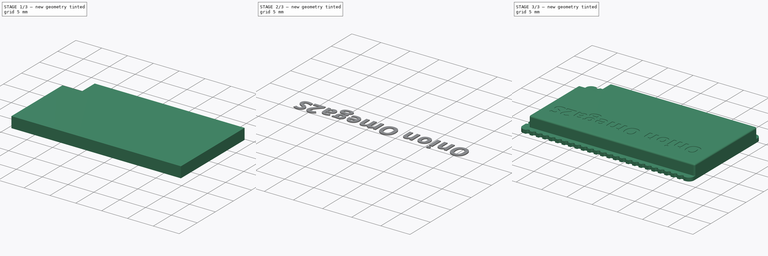
[diagram: build sequence overview — one tinted view per stage of 3, left to right]
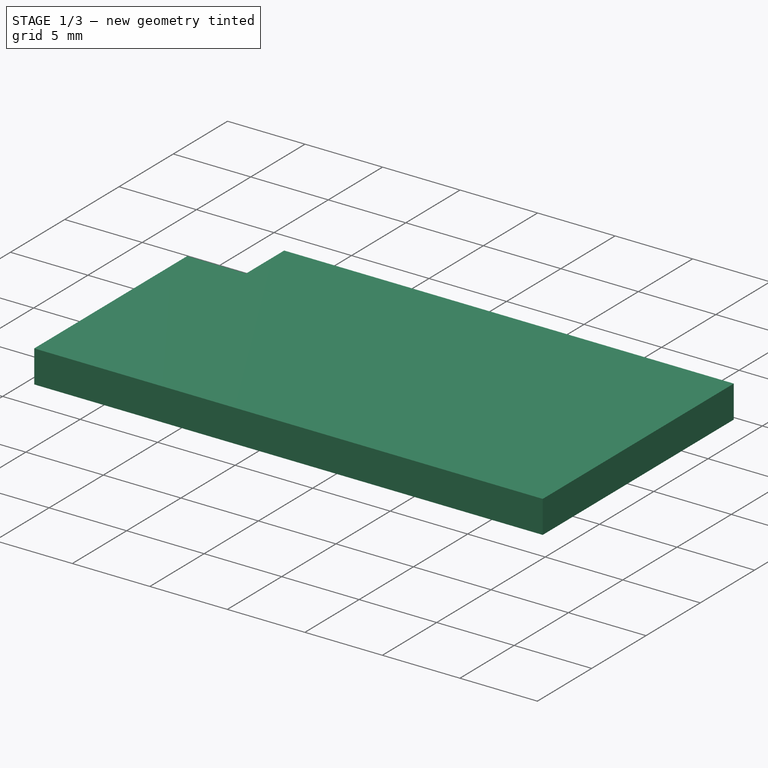
[diagram: stage 1 of 3 — iso view after this stage's code; geometry added in this stage tinted green]
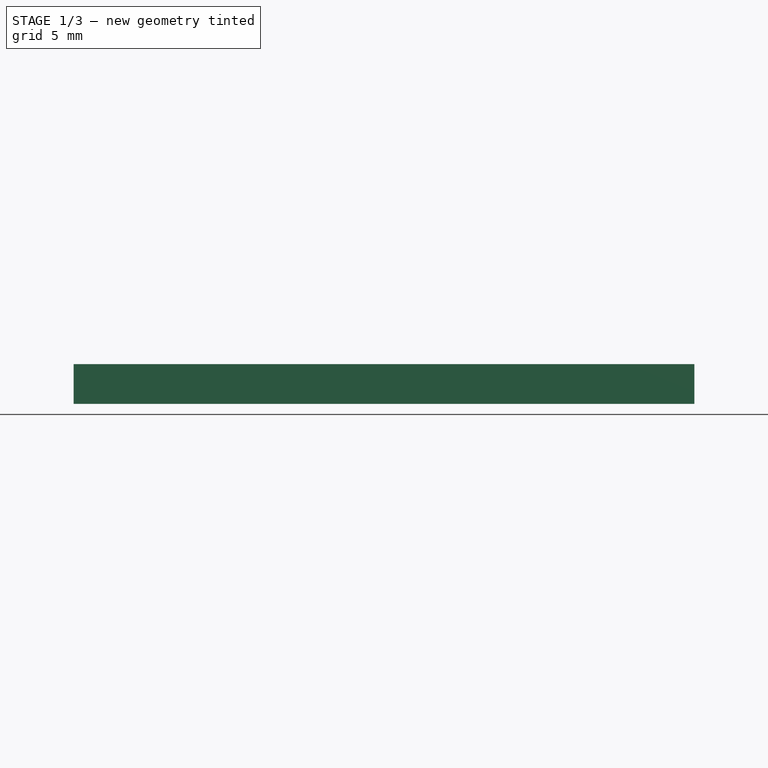
[diagram: stage 1 of 3 — front view after this stage's code; geometry added in this stage tinted green]
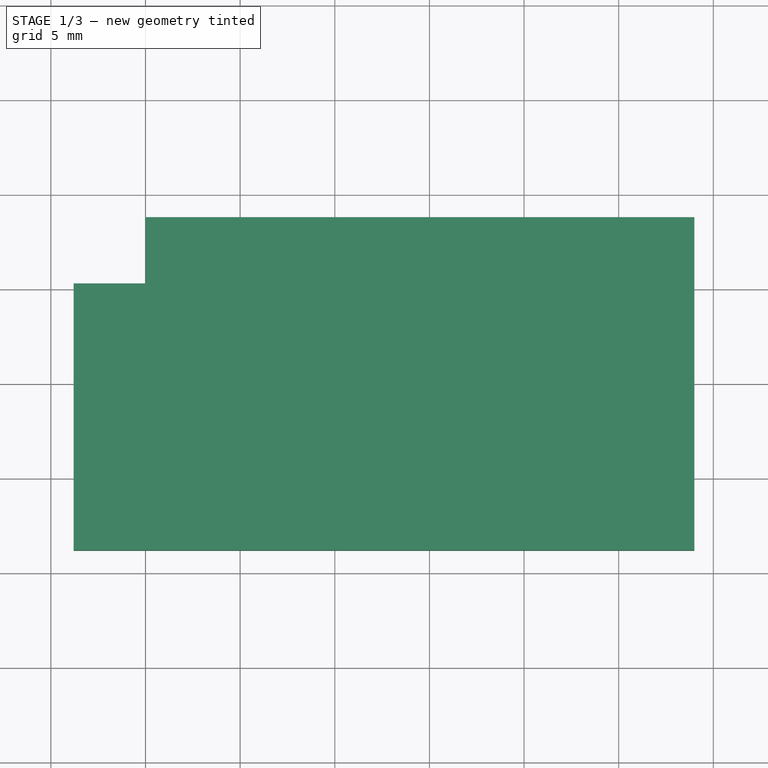
[diagram: stage 1 of 3 — top view after this stage's code; geometry added in this stage tinted green]
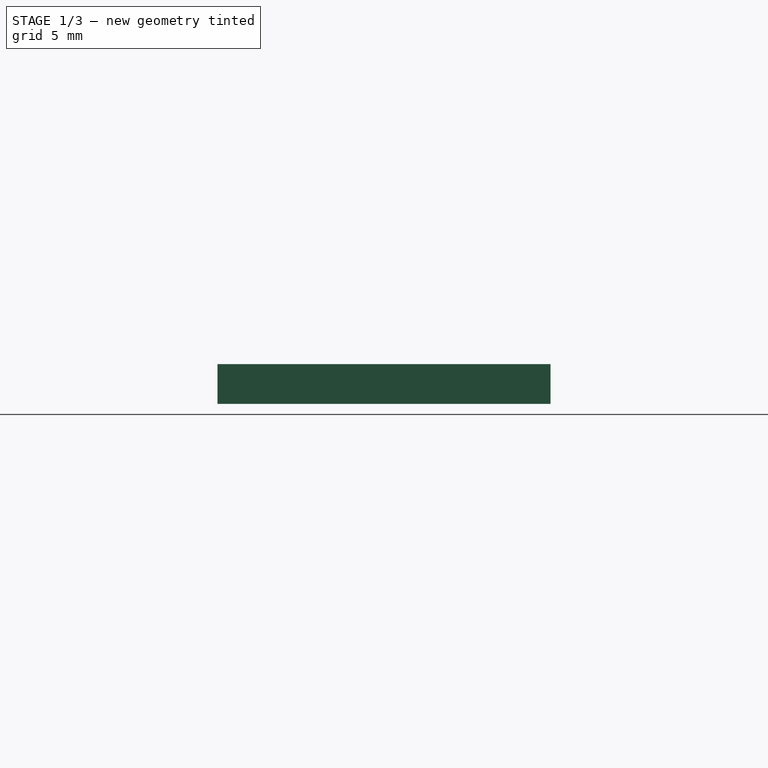
[diagram: stage 1 of 3 — right view after this stage's code; geometry added in this stage tinted green]
FCSTD DOCUMENT  (FreeCAD 0.19R24366 (Git))
Label: omega2s
License: CreativeCommons Attribution
LicenseURL: http://creativecommons.org/licenses/by/4.0/
objects: Sketcher::SketchObject×2, PartDesign::Pad×2, PartDesign::Body×2, App::Part×2, PartDesign::Fillet×2, PartDesign::Thickness×1, Part::Feature×1, Part::Part2DObjectPython×1, Part::Extrusion×1, Part::Cut×1
note: 18 computed .brp shape members not serialized (recipe doc carries the construction recipe); baked Part::Feature solids carry a one-line shape summary decoded from their .brp

FEATURE [PartDesign::Body] Body
  Group = -> [Sketch,Pad]
  Origin = -> Origin001
  Tip = -> Pad
FEATURE [App::Part] Part
  Group = -> [Body]
  Origin = -> Origin
FEATURE [Sketcher::SketchObject] Sketch001
  FullyConstrained = false
  MapMode = 5
  Support = -> [XY_Plane003]
  sketch-geometry (6):
    g0: LineSegment StartX=5 StartY=18.8 StartZ=0 EndX=34 EndY=18.8 EndZ=0
    g1: LineSegment StartX=34 StartY=18.8 StartZ=0 EndX=34 EndY=1.2 EndZ=0
    g2: LineSegment StartX=34 StartY=1.2 StartZ=0 EndX=1.2 EndY=1.2 EndZ=0
    g3: LineSegment StartX=1.2 StartY=1.2 StartZ=0 EndX=1.2 EndY=15.3 EndZ=0
    g4: LineSegment StartX=1.2 StartY=15.3 StartZ=0 EndX=5 EndY=15.3 EndZ=0
    g5: LineSegment StartX=5 StartY=15.3 StartZ=0 EndX=5 EndY=18.8 EndZ=0
  constraints (18):
    c: Horizontal(g0)
    c: Coincident(g0,g1)
    c: Vertical(g1)
    c: Coincident(g1,g2)
    c: Horizontal(g2)
    c: Coincident(g2,g3)
    c: Vertical(g3)
    c: Coincident(g3,g4)
    c: Horizontal(g4)
    c: Coincident(g4,g5)
    c: Coincident(g5,g0)
    c: Vertical(g5)
    c: DistanceX(g-1,g2) = 1.2
    c: DistanceY(g-1,g2) = 1.2
    c: DistanceX(g2,g2) = 32.8
    c: DistanceY(g1,g1) = 17.6
    c: DistanceX(g0,g0) = 29
    c: DistanceY(g5,g5) = 3.5
FEATURE [PartDesign::Pad] Pad001
  AllowMultiFace = false
  Direction = (1,1,1)
  Length = 2.1
  Length2 = 100
  Profile = -> Sketch001
  Type = 0
FEATURE [PartDesign::Thickness] Thickness
  Base = -> Pad001 [Face7]
  BaseFeature = -> Pad001
  Intersection = false
  Join = 1
  Mode = 0
  Reversed = true
  SupportTransform = false
  Value = 0.5
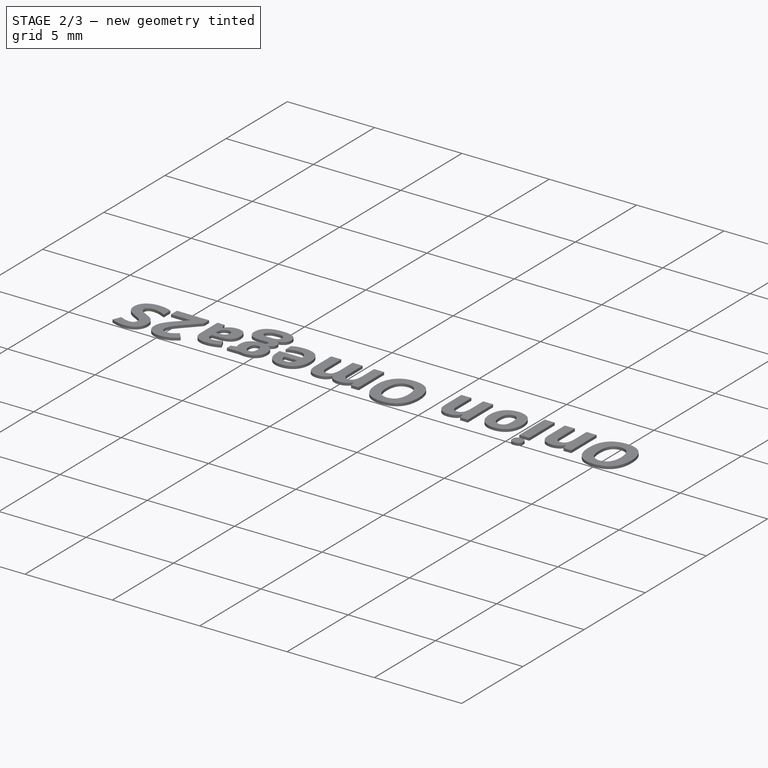
[diagram: stage 2 of 3 — iso view after this stage's code; geometry added in this stage tinted green]
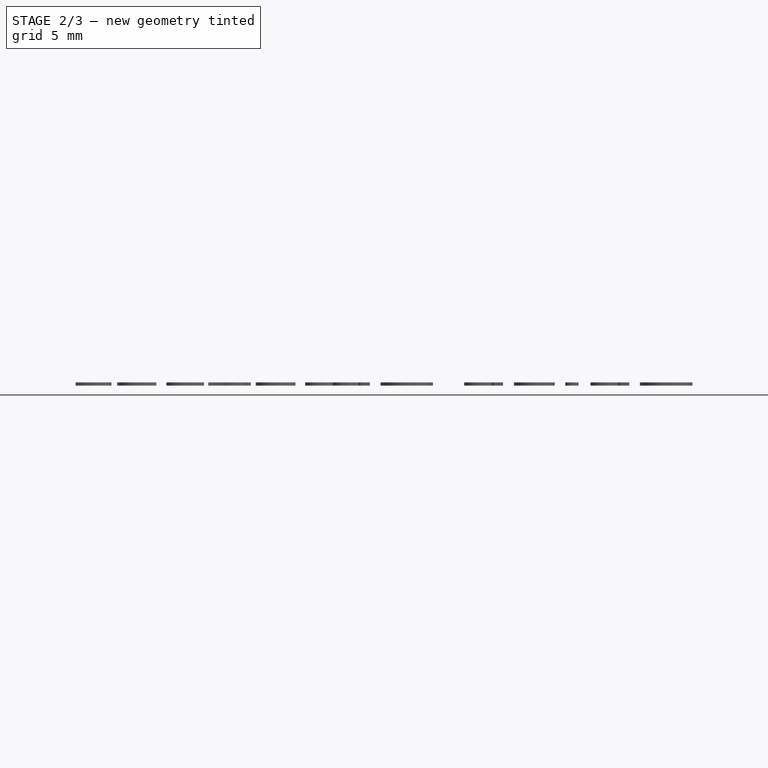
[diagram: stage 2 of 3 — front view after this stage's code; geometry added in this stage tinted green]
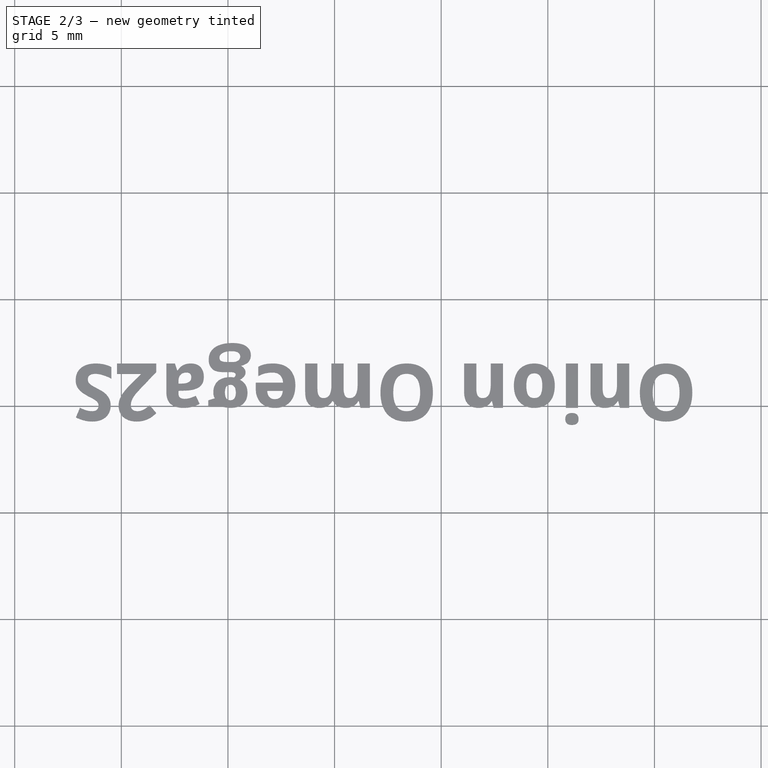
[diagram: stage 2 of 3 — top view after this stage's code; geometry added in this stage tinted green]
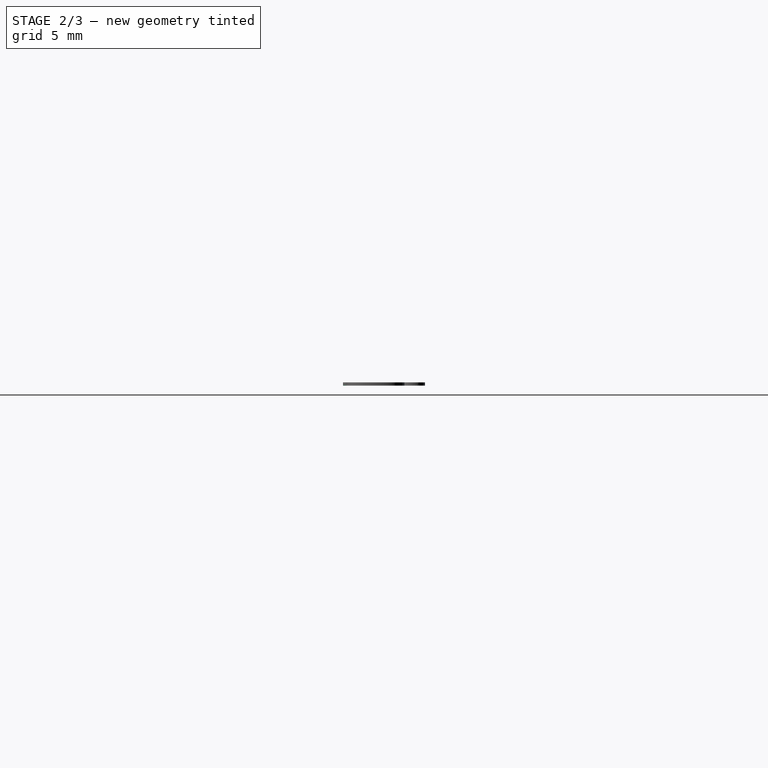
[diagram: stage 2 of 3 — right view after this stage's code; geometry added in this stage tinted green]
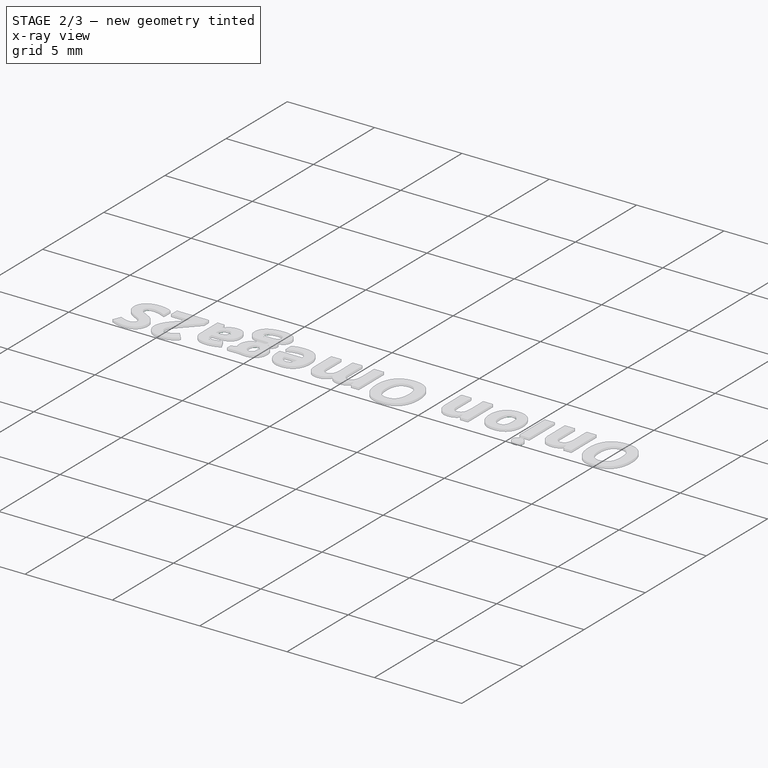
[diagram: stage 2 of 3 — x-ray composite at the iso view; earlier geometry ghosted, this stage's added geometry solid]
FEATURE [Part::Feature] Part__Feature  label="conn_rf_uFL_3450020P1"
  Placement = pos=(2.9,17.1,0.7) rot=(0,0,1;0rad)
  shape: bbox 3 x 3.1 x 1.25 mm, 79 faces (baked)
FEATURE [PartDesign::Fillet] Fillet
  Base = -> Thickness [Edge8,Edge5,Edge2,Edge1,Edge14,Edge11,Edge13,Edge10,Edge7,Edge4,Edge18,Edge16]
  BaseFeature = -> Thickness
  Radius = 0.3
  SupportTransform = false
FEATURE [PartDesign::Fillet] Fillet001
  Base = -> Fillet [Edge53,Edge55,Edge48,Edge46,Edge50,Edge51,Edge54,Edge52,Edge49,Edge47,Edge56,Edge57]
  BaseFeature = -> Fillet
  Radius = 0.1
  SupportTransform = false
FEATURE [PartDesign::Body] Body001
  Group = -> [Sketch001,Pad001,Thickness,Fillet,Fillet001]
  Origin = -> Origin003
  Tip = -> Fillet001
FEATURE [App::Part] Part001
  Group = -> [Body001]
  Origin = -> Origin002
  Placement = pos=(0,0,0.7) rot=(0,0,1;0rad)
FEATURE [Part::Part2DObjectPython] ShapeString  # Draft 2D object (typed FeaturePython)
  FontFile = <userpath>/Downloads/fonts/Droid_Sans/DroidSans-Bold.ttf
  Placement = pos=(32,7,2) rot=(0,0,1;3.14159rad)
  Size = 3
  String = Onion Omega2S
  Support = -> [Fillet001]
  Tracking = 0
FEATURE [Part::Extrusion] Extrude001
  Base = -> ShapeString
  Dir = (0,0,1)
  DirMode = 2
  FaceMakerClass = Part::FaceMakerBullseye
  LengthFwd = 0.15
  LengthRev = 0
  Solid = true
  Symmetric = false
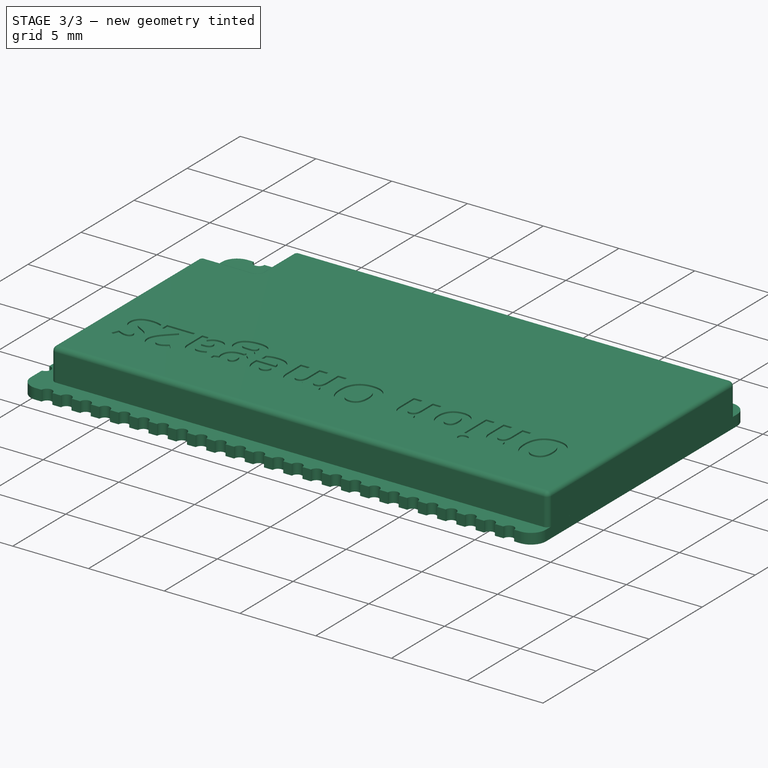
[diagram: stage 3 of 3 — iso view after this stage's code; geometry added in this stage tinted green]
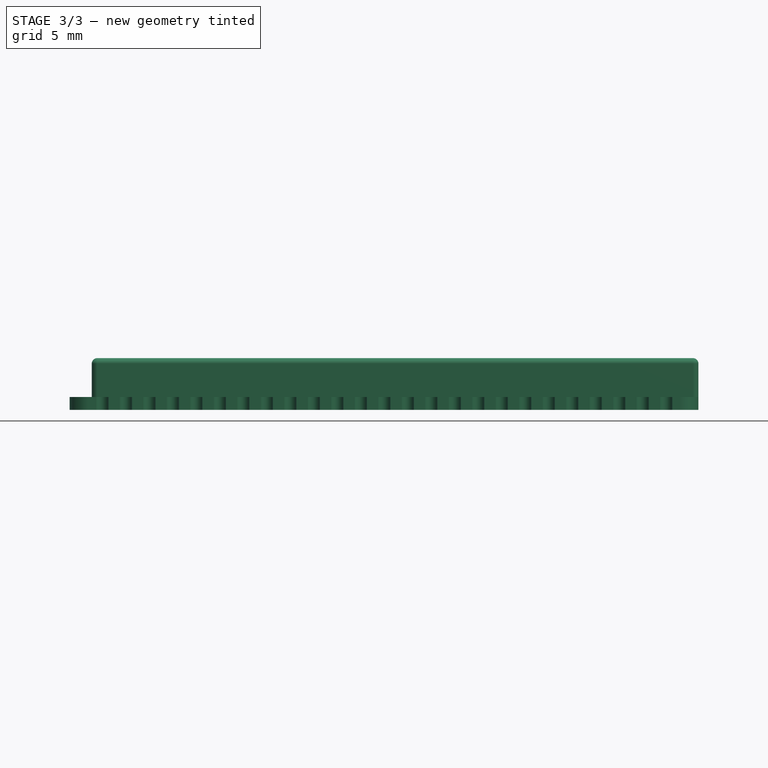
[diagram: stage 3 of 3 — front view after this stage's code; geometry added in this stage tinted green]
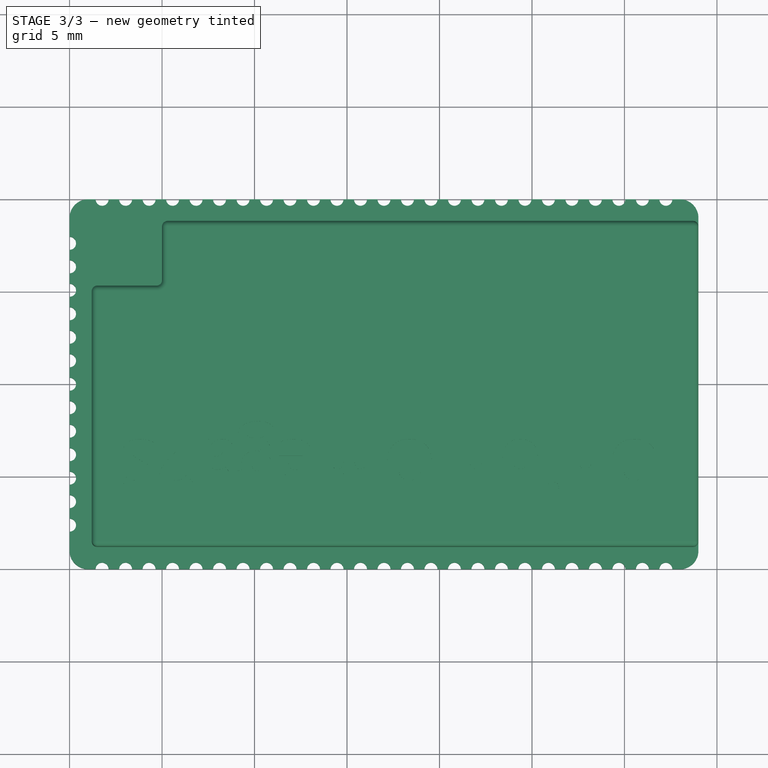
[diagram: stage 3 of 3 — top view after this stage's code; geometry added in this stage tinted green]
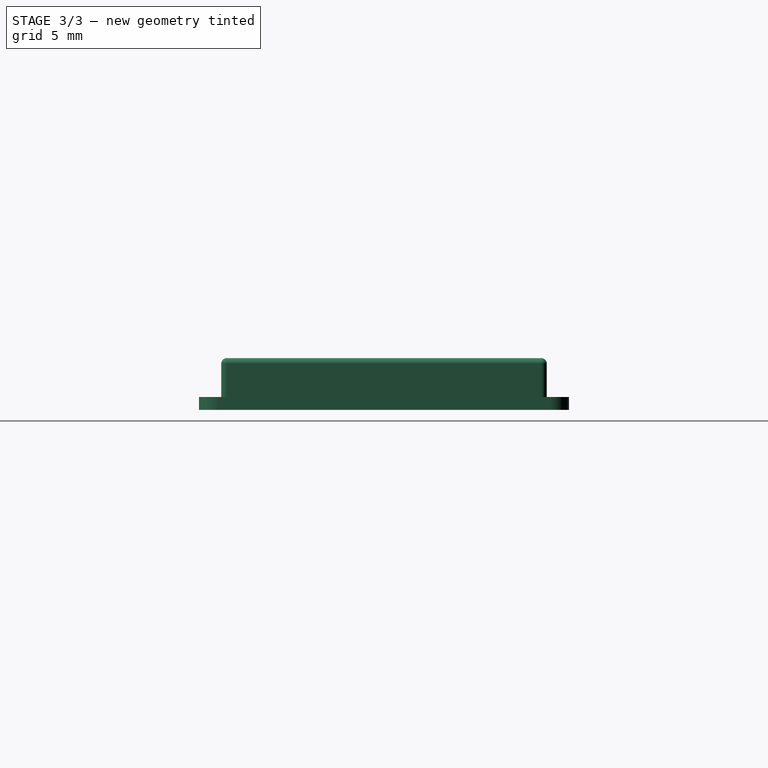
[diagram: stage 3 of 3 — right view after this stage's code; geometry added in this stage tinted green]
FEATURE [Sketcher::SketchObject] Sketch
  FullyConstrained = false
  MapMode = 5
  Support = -> [XY_Plane001]
  sketch-geometry (245):
    g0: LineSegment StartX=0 StartY=0 StartZ=0 EndX=1.76 EndY=0 EndZ=0
    g1: ArcOfCircle CenterX=1.76 CenterY=0 CenterZ=0 NormalX=0 NormalY=0 NormalZ=1 AngleXU=0 Radius=0.35 StartAngle=0 EndAngle=3.14159
    g2: LineSegment StartX=1.41 StartY=0 StartZ=0 EndX=1 EndY=0 EndZ=0
    g3: ArcOfCircle CenterX=3.03 CenterY=0 CenterZ=0 NormalX=0 NormalY=0 NormalZ=1 AngleXU=0 Radius=0.35 StartAngle=1e-16 EndAngle=3.14159
    g4: LineSegment StartX=2.11 StartY=0 StartZ=0 EndX=3.38 EndY=0 EndZ=0
    g5: ArcOfCircle CenterX=4.3 CenterY=0 CenterZ=0 NormalX=0 NormalY=0 NormalZ=1 AngleXU=0 Radius=0.35 StartAngle=1e-16 EndAngle=3.14159
    g6: LineSegment StartX=3.38 StartY=0 StartZ=0 EndX=4.65 EndY=0 EndZ=0
    g7: ArcOfCircle CenterX=5.57 CenterY=0 CenterZ=0 NormalX=0 NormalY=0 NormalZ=1 AngleXU=0 Radius=0.35 StartAngle=1e-16 EndAngle=3.14159
    g8: LineSegment StartX=4.65 StartY=0 StartZ=0 EndX=5.92 EndY=0 EndZ=0
    g9: ArcOfCircle CenterX=6.84 CenterY=0 CenterZ=0 NormalX=0 NormalY=0 NormalZ=1 AngleXU=0 Radius=0.35 StartAngle=1e-16 EndAngle=3.14159
    g10: LineSegment StartX=5.92 StartY=0 StartZ=0 EndX=7.19 EndY=0 EndZ=0
    g11: ArcOfCircle CenterX=8.11 CenterY=0 CenterZ=0 NormalX=0 NormalY=0 NormalZ=1 AngleXU=0 Radius=0.35 StartAngle=1e-16 EndAngle=3.14159
    g12: LineSegment StartX=7.19 StartY=0 StartZ=0 EndX=8.46 EndY=0 EndZ=0
    g13: ArcOfCircle CenterX=9.38 CenterY=0 CenterZ=0 NormalX=0 NormalY=0 NormalZ=1 AngleXU=0 Radius=0.35 StartAngle=1e-16 EndAngle=3.14159
    g14: LineSegment StartX=8.46 StartY=0 StartZ=0 EndX=9.73 EndY=0 EndZ=0
    g15: ArcOfCircle CenterX=10.65 CenterY=0 CenterZ=0 NormalX=0 NormalY=0 NormalZ=1 AngleXU=0 Radius=0.35 StartAngle=1e-16 EndAngle=3.14159
    g16: LineSegment StartX=9.73 StartY=0 StartZ=0 EndX=11 EndY=0 EndZ=0
    g17: ArcOfCircle CenterX=11.92 CenterY=0 CenterZ=0 NormalX=0 NormalY=0 NormalZ=1 AngleXU=0 Radius=0.35 StartAngle=1e-16 EndAngle=3.14159
    g18: LineSegment StartX=11 StartY=0 StartZ=0 EndX=12.27 EndY=0 EndZ=0
    g19: ArcOfCircle CenterX=13.19 CenterY=0 CenterZ=0 NormalX=0 NormalY=0 NormalZ=1 AngleXU=0 Radius=0.35 StartAngle=1e-16 EndAngle=3.14159
    g20: LineSegment StartX=12.27 StartY=0 StartZ=0 EndX=13.54 EndY=0 EndZ=0
    g21: ArcOfCircle CenterX=14.46 CenterY=0 CenterZ=0 NormalX=0 NormalY=0 NormalZ=1 AngleXU=0 Radius=0.35 StartAngle=1e-16 EndAngle=3.14159
    g22: LineSegment StartX=13.54 StartY=0 StartZ=0 EndX=14.81 EndY=0 EndZ=0
    g23: ArcOfCircle CenterX=15.73 CenterY=0 CenterZ=0 NormalX=0 NormalY=0 NormalZ=1 AngleXU=0 Radius=0.35 StartAngle=1e-16 EndAngle=3.14159
    g24: LineSegment StartX=14.81 StartY=0 StartZ=0 EndX=16.08 EndY=0 EndZ=0
    g25: ArcOfCircle CenterX=17 CenterY=0 CenterZ=0 NormalX=0 NormalY=0 NormalZ=1 AngleXU=0 Radius=0.35 StartAngle=1e-16 EndAngle=3.14159
    g26: LineSegment StartX=16.08 StartY=0 StartZ=0 EndX=17.35 EndY=0 EndZ=0
    g27: ArcOfCircle CenterX=18.27 CenterY=0 CenterZ=0 NormalX=0 NormalY=0 NormalZ=1 AngleXU=0 Radius=0.35 StartAngle=1e-16 EndAngle=3.14159
    g28: LineSegment StartX=17.35 StartY=0 StartZ=0 EndX=18.62 EndY=0 EndZ=0
    g29: ArcOfCircle CenterX=19.54 CenterY=0 CenterZ=0 NormalX=0 NormalY=0 NormalZ=1 AngleXU=0 Radius=0.35 StartAngle=1e-16 EndAngle=3.14159
    g30: LineSegment StartX=18.62 StartY=0 StartZ=0 EndX=19.89 EndY=0 EndZ=0
    g31: ArcOfCircle CenterX=20.81 CenterY=0 CenterZ=0 NormalX=0 NormalY=0 NormalZ=1 AngleXU=0 Radius=0.35 StartAngle=1e-16 EndAngle=3.14159
    g32: LineSegment StartX=19.89 StartY=0 StartZ=0 EndX=21.16 EndY=0 EndZ=0
    g33: ArcOfCircle CenterX=22.08 CenterY=0 CenterZ=0 NormalX=0 NormalY=0 NormalZ=1 AngleXU=0 Radius=0.35 StartAngle=1e-16 EndAngle=3.14159
    g34: LineSegment StartX=21.16 StartY=0 StartZ=0 EndX=22.43 EndY=0 EndZ=0
    g35: ArcOfCircle CenterX=23.35 CenterY=0 CenterZ=0 NormalX=0 NormalY=0 NormalZ=1 AngleXU=0 Radius=0.35 StartAngle=1e-16 EndAngle=3.14159
    g36: LineSegment StartX=22.43 StartY=0 StartZ=0 EndX=23.7 EndY=0 EndZ=0
    g37: ArcOfCircle CenterX=24.62 CenterY=0 CenterZ=0 NormalX=0 NormalY=0 NormalZ=1 AngleXU=0 Radius=0.35 StartAngle=1e-16 EndAngle=3.14159
    g38: LineSegment StartX=23.7 StartY=0 StartZ=0 EndX=24.97 EndY=0 EndZ=0
    g39: ArcOfCircle CenterX=25.89 CenterY=0 CenterZ=0 NormalX=0 NormalY=0 NormalZ=1 AngleXU=0 Radius=0.35 StartAngle=1e-16 EndAngle=3.14159
    g40: LineSegment StartX=24.97 StartY=0 StartZ=0 EndX=26.24 EndY=0 EndZ=0
    g41: ArcOfCircle CenterX=27.16 CenterY=0 CenterZ=0 NormalX=0 NormalY=0 NormalZ=1 AngleXU=0 Radius=0.35 StartAngle=1e-16 EndAngle=3.14159
    g42: LineSegment StartX=26.24 StartY=0 StartZ=0 EndX=27.51 EndY=0 EndZ=0
    g43: ArcOfCircle CenterX=28.43 CenterY=0 CenterZ=0 NormalX=0 NormalY=0 NormalZ=1 AngleXU=0 Radius=0.35 StartAngle=1e-16 EndAngle=3.14159
    g44: LineSegment StartX=27.51 StartY=0 StartZ=0 EndX=28.78 EndY=0 EndZ=0
    g45: ArcOfCircle CenterX=29.7 CenterY=0 CenterZ=0 NormalX=0 NormalY=0 NormalZ=1 AngleXU=0 Radius=0.35 StartAngle=1e-16 EndAngle=3.14159
    g46: LineSegment StartX=28.78 StartY=0 StartZ=0 EndX=30.05 EndY=0 EndZ=0
    g47: ArcOfCircle CenterX=30.97 CenterY=0 CenterZ=0 NormalX=0 NormalY=0 NormalZ=1 AngleXU=0 Radius=0.35 StartAngle=1e-16 EndAngle=3.14159
    g48: LineSegment StartX=30.05 StartY=0 StartZ=0 EndX=31.32 EndY=0 EndZ=0
    g49: ArcOfCircle CenterX=32.24 CenterY=0 CenterZ=0 NormalX=0 NormalY=0 NormalZ=1 AngleXU=0 Radius=0.35 StartAngle=1e-16 EndAngle=3.14159
    g50: LineSegment StartX=31.32 StartY=0 StartZ=0 EndX=32.59 EndY=0 EndZ=0
    g51: LineSegment StartX=2.11 StartY=0 StartZ=0 EndX=2.68 EndY=0 EndZ=0
    g52: LineSegment StartX=3.38 StartY=0 StartZ=0 EndX=3.95 EndY=0 EndZ=0
    g53: LineSegment StartX=2.11 StartY=0 StartZ=0 EndX=3.38 EndY=0 EndZ=0
    g54: LineSegment StartX=4.65 StartY=0 StartZ=0 EndX=5.22 EndY=0 EndZ=0
    g55: LineSegment StartX=3.38 StartY=0 StartZ=0 EndX=4.65 EndY=0 EndZ=0
    g56: LineSegment StartX=5.92 StartY=0 StartZ=0 EndX=6.49 EndY=0 EndZ=0
    g57: LineSegment StartX=4.65 StartY=0 StartZ=0 EndX=5.92 EndY=0 EndZ=0
    g58: LineSegment StartX=7.19 StartY=0 StartZ=0 EndX=7.76 EndY=0 EndZ=0
    g59: LineSegment StartX=5.92 StartY=0 StartZ=0 EndX=7.19 EndY=0 EndZ=0
    g60: LineSegment StartX=8.46 StartY=0 StartZ=0 EndX=9.03 EndY=0 EndZ=0
    g61: LineSegment StartX=7.19 StartY=0 StartZ=0 EndX=8.46 EndY=0 EndZ=0
    g62: LineSegment StartX=9.73 StartY=0 StartZ=0 EndX=10.3 EndY=0 EndZ=0
    g63: LineSegment StartX=8.46 StartY=0 StartZ=0 EndX=9.73 EndY=0 EndZ=0
    g64: LineSegment StartX=11 StartY=0 StartZ=0 EndX=11.57 EndY=0 EndZ=0
    g65: LineSegment StartX=9.73 StartY=0 StartZ=0 EndX=11 EndY=0 EndZ=0
    g66: LineSegment StartX=12.27 StartY=0 StartZ=0 EndX=12.84 EndY=0 EndZ=0
    g67: LineSegment StartX=11 StartY=0 StartZ=0 EndX=12.27 EndY=0 EndZ=0
    g68: LineSegment StartX=13.54 StartY=0 StartZ=0 EndX=14.11 EndY=0 EndZ=0
    g69: LineSegment StartX=12.27 StartY=0 StartZ=0 EndX=13.54 EndY=0 EndZ=0
    g70: LineSegment StartX=14.81 StartY=0 StartZ=0 EndX=15.38 EndY=0 EndZ=0
    g71: LineSegment StartX=13.54 StartY=0 StartZ=0 EndX=14.81 EndY=0 EndZ=0
    g72: LineSegment StartX=16.08 StartY=0 StartZ=0 EndX=16.65 EndY=0 EndZ=0
    g73: LineSegment StartX=14.81 StartY=0 StartZ=0 EndX=16.08 EndY=0 EndZ=0
    g74: LineSegment StartX=17.35 StartY=0 StartZ=0 EndX=17.92 EndY=0 EndZ=0
    g75: LineSegment StartX=16.08 StartY=0 StartZ=0 EndX=17.35 EndY=0 EndZ=0
    g76: LineSegment StartX=18.62 StartY=0 StartZ=0 EndX=19.19 EndY=0 EndZ=0
    g77: LineSegment StartX=17.35 StartY=0 StartZ=0 EndX=18.62 EndY=0 EndZ=0
    g78: LineSegment StartX=19.89 StartY=0 StartZ=0 EndX=20.46 EndY=0 EndZ=0
    g79: LineSegment StartX=18.62 StartY=0 StartZ=0 EndX=19.89 EndY=0 EndZ=0
    g80: LineSegment StartX=21.16 StartY=0 StartZ=0 EndX=21.73 EndY=0 EndZ=0
    g81: LineSegment StartX=19.89 StartY=0 StartZ=0 EndX=21.16 EndY=0 EndZ=0
    g82: LineSegment StartX=22.43 StartY=0 StartZ=0 EndX=23 EndY=0 EndZ=0
    g83: LineSegment StartX=21.16 StartY=0 StartZ=0 EndX=22.43 EndY=0 EndZ=0
    g84: LineSegment StartX=23.7 StartY=0 StartZ=0 EndX=24.27 EndY=0 EndZ=0
    g85: LineSegment StartX=22.43 StartY=0 StartZ=0 EndX=23.7 EndY=0 EndZ=0
    g86: LineSegment StartX=24.97 StartY=0 StartZ=0 EndX=25.54 EndY=0 EndZ=0
    g87: LineSegment StartX=23.7 StartY=0 StartZ=0 EndX=24.97 EndY=0 EndZ=0
    g88: LineSegment StartX=26.24 StartY=0 StartZ=0 EndX=26.81 EndY=0 EndZ=0
    g89: LineSegment StartX=24.97 StartY=0 StartZ=0 EndX=26.24 EndY=0 EndZ=0
    g90: LineSegment StartX=27.51 StartY=0 StartZ=0 EndX=28.08 EndY=0 EndZ=0
    g91: LineSegment StartX=26.24 StartY=0 StartZ=0 EndX=27.51 EndY=0 EndZ=0
    g92: LineSegment StartX=28.78 StartY=0 StartZ=0 EndX=29.35 EndY=0 EndZ=0
    g93: LineSegment StartX=27.51 StartY=0 StartZ=0 EndX=28.78 EndY=0 EndZ=0
    g94: LineSegment StartX=30.05 StartY=0 StartZ=0 EndX=30.62 EndY=0 EndZ=0
    g95: LineSegment StartX=28.78 StartY=0 StartZ=0 EndX=30.05 EndY=0 EndZ=0
    g96: LineSegment StartX=31.32 StartY=0 StartZ=0 EndX=31.89 EndY=0 EndZ=0
    g97: LineSegment StartX=30.05 StartY=0 StartZ=0 EndX=31.32 EndY=0 EndZ=0
    g98: LineSegment StartX=32.59 StartY=0 StartZ=0 EndX=33 EndY=-4e-16 EndZ=0
    g99: LineSegment StartX=34 StartY=1 StartZ=0 EndX=34 EndY=10 EndZ=0
    g100: LineSegment StartX=34 StartY=10 StartZ=0 EndX=34 EndY=19 EndZ=0
    g101: LineSegment StartX=34 StartY=10 StartZ=0 EndX=0 EndY=10 EndZ=0
    g102: LineSegment StartX=0 StartY=20 StartZ=0 EndX=1.76 EndY=20 EndZ=0
    g103: ArcOfCircle CenterX=1.76 CenterY=20 CenterZ=0 NormalX=0 NormalY=0 NormalZ=1 AngleXU=0 Radius=0.35 StartAngle=3.14159 EndAngle=6.28319
    g104: LineSegment StartX=1.41 StartY=20 StartZ=0 EndX=1 EndY=20 EndZ=0
    g105: ArcOfCircle CenterX=3.03 CenterY=20 CenterZ=0 NormalX=0 NormalY=0 NormalZ=1 AngleXU=0 Radius=0.35 StartAngle=3.14159 EndAngle=6.28319
    g106: LineSegment StartX=2.11 StartY=20 StartZ=0 EndX=3.38 EndY=20 EndZ=0
    g107: ArcOfCircle CenterX=4.3 CenterY=20 CenterZ=0 NormalX=0 NormalY=0 NormalZ=1 AngleXU=0 Radius=0.35 StartAngle=3.14159 EndAngle=6.28319
    g108: LineSegment StartX=3.38 StartY=20 StartZ=0 EndX=4.65 EndY=20 EndZ=0
    g109: ArcOfCircle CenterX=5.57 CenterY=20 CenterZ=0 NormalX=0 NormalY=0 NormalZ=1 AngleXU=0 Radius=0.35 StartAngle=3.14159 EndAngle=6.28319
    g110: LineSegment StartX=4.65 StartY=20 StartZ=0 EndX=5.92 EndY=20 EndZ=0
    g111: ArcOfCircle CenterX=6.84 CenterY=20 CenterZ=0 NormalX=0 NormalY=0 NormalZ=1 AngleXU=0 Radius=0.35 StartAngle=3.14159 EndAngle=6.28319
    g112: LineSegment StartX=5.92 StartY=20 StartZ=0 EndX=7.19 EndY=20 EndZ=0
    g113: ArcOfCircle CenterX=8.11 CenterY=20 CenterZ=0 NormalX=0 NormalY=0 NormalZ=1 AngleXU=0 Radius=0.35 StartAngle=3.14159 EndAngle=6.28319
    g114: LineSegment StartX=7.19 StartY=20 StartZ=0 EndX=8.46 EndY=20 EndZ=0
    g115: ArcOfCircle CenterX=9.38 CenterY=20 CenterZ=0 NormalX=0 NormalY=0 NormalZ=1 AngleXU=0 Radius=0.35 StartAngle=3.14159 EndAngle=6.28319
    g116: LineSegment StartX=8.46 StartY=20 StartZ=0 EndX=9.73 EndY=20 EndZ=0
    g117: ArcOfCircle CenterX=10.65 CenterY=20 CenterZ=0 NormalX=0 NormalY=0 NormalZ=1 AngleXU=0 Radius=0.35 StartAngle=3.14159 EndAngle=6.28319
    g118: LineSegment StartX=9.73 StartY=20 StartZ=0 EndX=11 EndY=20 EndZ=0
    g119: ArcOfCircle CenterX=11.92 CenterY=20 CenterZ=0 NormalX=0 NormalY=0 NormalZ=1 AngleXU=0 Radius=0.35 StartAngle=3.14159 EndAngle=6.28319
    g120: LineSegment StartX=11 StartY=20 StartZ=0 EndX=12.27 EndY=20 EndZ=0
    g121: ArcOfCircle CenterX=13.19 CenterY=20 CenterZ=0 NormalX=0 NormalY=0 NormalZ=1 AngleXU=0 Radius=0.35 StartAngle=3.14159 EndAngle=6.28319
    g122: LineSegment StartX=12.27 StartY=20 StartZ=0 EndX=13.54 EndY=20 EndZ=0
    g123: ArcOfCircle CenterX=14.46 CenterY=20 CenterZ=0 NormalX=0 NormalY=0 NormalZ=1 AngleXU=0 Radius=0.35 StartAngle=3.14159 EndAngle=6.28319
    g124: LineSegment StartX=13.54 StartY=20 StartZ=0 EndX=14.81 EndY=20 EndZ=0
    g125: ArcOfCircle CenterX=15.73 CenterY=20 CenterZ=0 NormalX=0 NormalY=0 NormalZ=1 AngleXU=0 Radius=0.35 StartAngle=3.14159 EndAngle=6.28319
    g126: LineSegment StartX=14.81 StartY=20 StartZ=0 EndX=16.08 EndY=20 EndZ=0
    g127: ArcOfCircle CenterX=17 CenterY=20 CenterZ=0 NormalX=0 NormalY=0 NormalZ=1 AngleXU=0 Radius=0.35 StartAngle=3.14159 EndAngle=6.28319
    g128: LineSegment StartX=16.08 StartY=20 StartZ=0 EndX=17.35 EndY=20 EndZ=0
    g129: ArcOfCircle CenterX=18.27 CenterY=20 CenterZ=0 NormalX=0 NormalY=0 NormalZ=1 AngleXU=0 Radius=0.35 StartAngle=3.14159 EndAngle=6.28319
    g130: LineSegment StartX=17.35 StartY=20 StartZ=0 EndX=18.62 EndY=20 EndZ=0
    g131: ArcOfCircle CenterX=19.54 CenterY=20 CenterZ=0 NormalX=0 NormalY=0 NormalZ=1 AngleXU=0 Radius=0.35 StartAngle=3.14159 EndAngle=6.28319
    g132: LineSegment StartX=18.62 StartY=20 StartZ=0 EndX=19.89 EndY=20 EndZ=0
    g133: ArcOfCircle CenterX=20.81 CenterY=20 CenterZ=0 NormalX=0 NormalY=0 NormalZ=1 AngleXU=0 Radius=0.35 StartAngle=3.14159 EndAngle=6.28319
    g134: LineSegment StartX=19.89 StartY=20 StartZ=0 EndX=21.16 EndY=20 EndZ=0
    g135: ArcOfCircle CenterX=22.08 CenterY=20 CenterZ=0 NormalX=0 NormalY=0 NormalZ=1 AngleXU=0 Radius=0.35 StartAngle=3.14159 EndAngle=6.28319
    g136: LineSegment StartX=21.16 StartY=20 StartZ=0 EndX=22.43 EndY=20 EndZ=0
    g137: ArcOfCircle CenterX=23.35 CenterY=20 CenterZ=0 NormalX=0 NormalY=0 NormalZ=1 AngleXU=0 Radius=0.35 StartAngle=3.14159 EndAngle=6.28319
    g138: LineSegment StartX=22.43 StartY=20 StartZ=0 EndX=23.7 EndY=20 EndZ=0
    g139: ArcOfCircle CenterX=24.62 CenterY=20 CenterZ=0 NormalX=0 NormalY=0 NormalZ=1 AngleXU=0 Radius=0.35 StartAngle=3.14159 EndAngle=6.28319
    g140: LineSegment StartX=23.7 StartY=20 StartZ=0 EndX=24.97 EndY=20 EndZ=0
    g141: ArcOfCircle CenterX=25.89 CenterY=20 CenterZ=0 NormalX=0 NormalY=0 NormalZ=1 AngleXU=0 Radius=0.35 StartAngle=3.14159 EndAngle=6.28319
    g142: LineSegment StartX=24.97 StartY=20 StartZ=0 EndX=26.24 EndY=20 EndZ=0
    g143: ArcOfCircle CenterX=27.16 CenterY=20 CenterZ=0 NormalX=0 NormalY=0 NormalZ=1 AngleXU=0 Radius=0.35 StartAngle=3.14159 EndAngle=6.28319
    g144: LineSegment StartX=26.24 StartY=20 StartZ=0 EndX=27.51 EndY=20 EndZ=0
    g145: ArcOfCircle CenterX=28.43 CenterY=20 CenterZ=0 NormalX=0 NormalY=0 NormalZ=1 AngleXU=0 Radius=0.35 StartAngle=3.14159 EndAngle=6.28319
    g146: LineSegment StartX=27.51 StartY=20 StartZ=0 EndX=28.78 EndY=20 EndZ=0
    g147: ArcOfCircle CenterX=29.7 CenterY=20 CenterZ=0 NormalX=0 NormalY=0 NormalZ=1 AngleXU=0 Radius=0.35 StartAngle=3.14159 EndAngle=6.28319
    g148: LineSegment StartX=28.78 StartY=20 StartZ=0 EndX=30.05 EndY=20 EndZ=0
    g149: ArcOfCircle CenterX=30.97 CenterY=20 CenterZ=0 NormalX=0 NormalY=0 NormalZ=1 AngleXU=0 Radius=0.35 StartAngle=3.14159 EndAngle=6.28319
    g150: LineSegment StartX=30.05 StartY=20 StartZ=0 EndX=31.32 EndY=20 EndZ=0
    g151: ArcOfCircle CenterX=32.24 CenterY=20 CenterZ=0 NormalX=0 NormalY=0 NormalZ=1 AngleXU=0 Radius=0.35 StartAngle=3.14159 EndAngle=6.28319
    g152: LineSegment StartX=31.32 StartY=20 StartZ=0 EndX=32.59 EndY=20 EndZ=0
    g153: LineSegment StartX=2.11 StartY=20 StartZ=0 EndX=2.68 EndY=20 EndZ=0
    g154: LineSegment StartX=3.38 StartY=20 StartZ=0 EndX=3.95 EndY=20 EndZ=0
    g155: LineSegment StartX=2.11 StartY=20 StartZ=0 EndX=3.38 EndY=20 EndZ=0
    g156: LineSegment StartX=4.65 StartY=20 StartZ=0 EndX=5.22 EndY=20 EndZ=0
    g157: LineSegment StartX=3.38 StartY=20 StartZ=0 EndX=4.65 EndY=20 EndZ=0
    g158: LineSegment StartX=5.92 StartY=20 StartZ=0 EndX=6.49 EndY=20 EndZ=0
    g159: LineSegment StartX=4.65 StartY=20 StartZ=0 EndX=5.92 EndY=20 EndZ=0
    g160: LineSegment StartX=7.19 StartY=20 StartZ=0 EndX=7.76 EndY=20 EndZ=0
    g161: LineSegment StartX=5.92 StartY=20 StartZ=0 EndX=7.19 EndY=20 EndZ=0
    g162: LineSegment StartX=8.46 StartY=20 StartZ=0 EndX=9.03 EndY=20 EndZ=0
    g163: LineSegment StartX=7.19 StartY=20 StartZ=0 EndX=8.46 EndY=20 EndZ=0
    g164: LineSegment StartX=9.73 StartY=20 StartZ=0 EndX=10.3 EndY=20 EndZ=0
    g165: LineSegment StartX=8.46 StartY=20 StartZ=0 EndX=9.73 EndY=20 EndZ=0
    g166: LineSegment StartX=11 StartY=20 StartZ=0 EndX=11.57 EndY=20 EndZ=0
    g167: LineSegment StartX=9.73 StartY=20 StartZ=0 EndX=11 EndY=20 EndZ=0
    g168: LineSegment StartX=12.27 StartY=20 StartZ=0 EndX=12.84 EndY=20 EndZ=0
    g169: LineSegment StartX=11 StartY=20 StartZ=0 EndX=12.27 EndY=20 EndZ=0
    g170: LineSegment StartX=13.54 StartY=20 StartZ=0 EndX=14.11 EndY=20 EndZ=0
    g171: LineSegment StartX=12.27 StartY=20 StartZ=0 EndX=13.54 EndY=20 EndZ=0
    g172: LineSegment StartX=14.81 StartY=20 StartZ=0 EndX=15.38 EndY=20 EndZ=0
    g173: LineSegment StartX=13.54 StartY=20 StartZ=0 EndX=14.81 EndY=20 EndZ=0
    g174: LineSegment StartX=16.08 StartY=20 StartZ=0 EndX=16.65 EndY=20 EndZ=0
    g175: LineSegment StartX=14.81 StartY=20 StartZ=0 EndX=16.08 EndY=20 EndZ=0
    g176: LineSegment StartX=17.35 StartY=20 StartZ=0 EndX=17.92 EndY=20 EndZ=0
    g177: LineSegment StartX=16.08 StartY=20 StartZ=0 EndX=17.35 EndY=20 EndZ=0
    g178: LineSegment StartX=18.62 StartY=20 StartZ=0 EndX=19.19 EndY=20 EndZ=0
    g179: LineSegment StartX=17.35 StartY=20 StartZ=0 EndX=18.62 EndY=20 EndZ=0
    g180: LineSegment StartX=19.89 StartY=20 StartZ=0 EndX=20.46 EndY=20 EndZ=0
    g181: LineSegment StartX=18.62 StartY=20 StartZ=0 EndX=19.89 EndY=20 EndZ=0
    g182: LineSegment StartX=21.16 StartY=20 StartZ=0 EndX=21.73 EndY=20 EndZ=0
    g183: LineSegment StartX=19.89 StartY=20 StartZ=0 EndX=21.16 EndY=20 EndZ=0
    g184: LineSegment StartX=22.43 StartY=20 StartZ=0 EndX=23 EndY=20 EndZ=0
    g185: LineSegment StartX=21.16 StartY=20 StartZ=0 EndX=22.43 EndY=20 EndZ=0
    g186: LineSegment StartX=23.7 StartY=20 StartZ=0 EndX=24.27 EndY=20 EndZ=0
    g187: LineSegment StartX=22.43 StartY=20 StartZ=0 EndX=23.7 EndY=20 EndZ=0
    g188: LineSegment StartX=24.97 StartY=20 StartZ=0 EndX=25.54 EndY=20 EndZ=0
    g189: LineSegment StartX=23.7 StartY=20 StartZ=0 EndX=24.97 EndY=20 EndZ=0
    g190: LineSegment StartX=26.24 StartY=20 StartZ=0 EndX=26.81 EndY=20 EndZ=0
    g191: LineSegment StartX=24.97 StartY=20 StartZ=0 EndX=26.24 EndY=20 EndZ=0
    g192: LineSegment StartX=27.51 StartY=20 StartZ=0 EndX=28.08 EndY=20 EndZ=0
    g193: LineSegment StartX=26.24 StartY=20 StartZ=0 EndX=27.51 EndY=20 EndZ=0
    g194: LineSegment StartX=28.78 StartY=20 StartZ=0 EndX=29.35 EndY=20 EndZ=0
    g195: LineSegment StartX=27.51 StartY=20 StartZ=0 EndX=28.78 EndY=20 EndZ=0
    g196: LineSegment StartX=30.05 StartY=20 StartZ=0 EndX=30.62 EndY=20 EndZ=0
    g197: LineSegment StartX=28.78 StartY=20 StartZ=0 EndX=30.05 EndY=20 EndZ=0
    g198: LineSegment StartX=31.32 StartY=20 StartZ=0 EndX=31.89 EndY=20 EndZ=0
    g199: LineSegment StartX=30.05 StartY=20 StartZ=0 EndX=31.32 EndY=20 EndZ=0
    g200: LineSegment StartX=32.59 StartY=20 StartZ=0 EndX=33 EndY=20 EndZ=0
    g201: LineSegment StartX=0 StartY=0 StartZ=0 EndX=0 EndY=2.38 EndZ=0
    g202: ArcOfCircle CenterX=0 CenterY=2.38 CenterZ=0 NormalX=0 NormalY=0 NormalZ=1 AngleXU=0 Radius=0.35 StartAngle=4.71239 EndAngle=7.85398
    g203: LineSegment StartX=0 StartY=2.03 StartZ=0 EndX=0 EndY=1 EndZ=0
    g204: ArcOfCircle CenterX=2e-16 CenterY=3.65 CenterZ=0 NormalX=0 NormalY=0 NormalZ=1 AngleXU=0 Radius=0.35 StartAngle=4.71239 EndAngle=7.85398
    g205: LineSegment StartX=0 StartY=2.03 StartZ=0 EndX=1e-16 EndY=3.3 EndZ=0
    g206: ArcOfCircle CenterX=2e-16 CenterY=4.92 CenterZ=0 NormalX=0 NormalY=0 NormalZ=1 AngleXU=0 Radius=0.35 StartAngle=4.71239 EndAngle=7.85398
    g207: LineSegment StartX=1e-16 StartY=3.3 StartZ=0 EndX=3e-16 EndY=4.57 EndZ=0
    g208: ArcOfCircle CenterX=3e-16 CenterY=6.19 CenterZ=0 NormalX=0 NormalY=0 NormalZ=1 AngleXU=0 Radius=0.35 StartAngle=4.71239 EndAngle=7.85398
    g209: LineSegment StartX=3e-16 StartY=4.57 StartZ=0 EndX=3e-16 EndY=5.84 EndZ=0
    g210: ArcOfCircle CenterX=4e-16 CenterY=7.46 CenterZ=0 NormalX=0 NormalY=0 NormalZ=1 AngleXU=0 Radius=0.35 StartAngle=4.71239 EndAngle=7.85398
    g211: LineSegment StartX=3e-16 StartY=5.84 StartZ=0 EndX=4e-16 EndY=7.11 EndZ=0
    g212: ArcOfCircle CenterX=5e-16 CenterY=8.73 CenterZ=0 NormalX=0 NormalY=0 NormalZ=1 AngleXU=0 Radius=0.35 StartAngle=4.71239 EndAngle=7.85398
    g213: LineSegment StartX=4e-16 StartY=7.11 StartZ=0 EndX=5e-16 EndY=8.38 EndZ=0
    g214: ArcOfCircle CenterX=5e-16 CenterY=10 CenterZ=0 NormalX=0 NormalY=0 NormalZ=1 AngleXU=0 Radius=0.35 StartAngle=4.71239 EndAngle=7.85398
    g215: LineSegment StartX=5e-16 StartY=8.38 StartZ=0 EndX=5e-16 EndY=9.65 EndZ=0
    g216: ArcOfCircle CenterX=6e-16 CenterY=11.27 CenterZ=0 NormalX=0 NormalY=0 NormalZ=1 AngleXU=0 Radius=0.35 StartAngle=4.71239 EndAngle=7.85398
    g217: LineSegment StartX=5e-16 StartY=9.65 StartZ=0 EndX=6e-16 EndY=10.92 EndZ=0
    g218: ArcOfCircle CenterX=7e-16 CenterY=12.54 CenterZ=0 NormalX=0 NormalY=0 NormalZ=1 AngleXU=0 Radius=0.35 StartAngle=4.71239 EndAngle=7.85398
    g219: LineSegment StartX=6e-16 StartY=10.92 StartZ=0 EndX=7e-16 EndY=12.19 EndZ=0
    g220: ArcOfCircle CenterX=8e-16 CenterY=13.81 CenterZ=0 NormalX=0 NormalY=0 NormalZ=1 AngleXU=0 Radius=0.35 StartAngle=4.71239 EndAngle=7.85398
    g221: LineSegment StartX=7e-16 StartY=12.19 StartZ=0 EndX=8e-16 EndY=13.46 EndZ=0
    g222: ArcOfCircle CenterX=8e-16 CenterY=15.08 CenterZ=0 NormalX=0 NormalY=0 NormalZ=1 AngleXU=0 Radius=0.35 StartAngle=4.71239 EndAngle=7.85398
    g223: LineSegment StartX=8e-16 StartY=13.46 StartZ=0 EndX=9e-16 EndY=14.73 EndZ=0
    g224: ArcOfCircle CenterX=9e-16 CenterY=16.35 CenterZ=0 NormalX=0 NormalY=0 NormalZ=1 AngleXU=0 Radius=0.35 StartAngle=4.71239 EndAngle=7.85398
    g225: LineSegment StartX=9e-16 StartY=14.73 StartZ=0 EndX=9e-16 EndY=16 EndZ=0
    g226: ArcOfCircle CenterX=5e-16 CenterY=17.62 CenterZ=0 NormalX=0 NormalY=0 NormalZ=1 AngleXU=0 Radius=0.35 StartAngle=4.71239 EndAngle=7.85398
    g227: LineSegment StartX=9e-16 StartY=16 StartZ=0 EndX=1e-15 EndY=17.27 EndZ=0
    g228: LineSegment StartX=1e-16 StartY=2.73 StartZ=0 EndX=1e-16 EndY=3.3 EndZ=0
    g229: LineSegment StartX=3e-16 StartY=4 StartZ=0 EndX=3e-16 EndY=4.57 EndZ=0
    g230: LineSegment StartX=3e-16 StartY=5.27 StartZ=0 EndX=3e-16 EndY=5.84 EndZ=0
    g231: LineSegment StartX=4e-16 StartY=6.54 StartZ=0 EndX=4e-16 EndY=7.11 EndZ=0
    g232: LineSegment StartX=5e-16 StartY=7.81 StartZ=0 EndX=5e-16 EndY=8.38 EndZ=0
    g233: LineSegment StartX=6e-16 StartY=9.08 StartZ=0 EndX=5e-16 EndY=9.65 EndZ=0
    g234: LineSegment StartX=6e-16 StartY=10.35 StartZ=0 EndX=6e-16 EndY=10.92 EndZ=0
    g235: LineSegment StartX=7e-16 StartY=11.62 StartZ=0 EndX=7e-16 EndY=12.19 EndZ=0
    g236: LineSegment StartX=8e-16 StartY=12.89 StartZ=0 EndX=8e-16 EndY=13.46 EndZ=0
    g237: LineSegment StartX=9e-16 StartY=14.16 StartZ=0 EndX=9e-16 EndY=14.73 EndZ=0
    g238: LineSegment StartX=9e-16 StartY=15.43 StartZ=0 EndX=9e-16 EndY=16 EndZ=0
    g239: LineSegment StartX=1e-15 StartY=16.7 StartZ=0 EndX=1e-15 EndY=17.27 EndZ=0
    g240: LineSegment StartX=-1e-16 StartY=17.97 StartZ=0 EndX=-1e-16 EndY=19 EndZ=0
    g241: ArcOfCircle CenterX=1 CenterY=1 CenterZ=0 NormalX=0 NormalY=0 NormalZ=1 AngleXU=0 Radius=1 StartAngle=3.14159 EndAngle=4.71239
    g242: ArcOfCircle CenterX=1 CenterY=19 CenterZ=0 NormalX=0 NormalY=0 NormalZ=1 AngleXU=0 Radius=1 StartAngle=1.5708 EndAngle=3.14159
    g243: ArcOfCircle CenterX=33 CenterY=19 CenterZ=0 NormalX=0 NormalY=0 NormalZ=1 AngleXU=0 Radius=1 StartAngle=8.98e-14 EndAngle=1.5708
    g244: ArcOfCircle CenterX=33 CenterY=1 CenterZ=0 NormalX=0 NormalY=0 NormalZ=1 AngleXU=0 Radius=1 StartAngle=4.71239 EndAngle=6.28319
  constraints (732):
    c: Coincident(g0,g-1)
    c: PointOnObject(g0,g-1)
    c: DistanceX(g0,g0) = 1.76
    c: Coincident(g1,g0)
    c: Radius(g1) = 0.35
    c: Angle(g1) = 3.14159
    c: DistanceY(g1,g-1) = 0
    c: Coincident(g2,g1)
    c: Radius(g3) = 0.35
    c: Angle(g3) = 3.14159
    c: Coincident(g1,g4)
    c: Coincident(g3,g4)
    c: Distance(g4) = 1.27
    c: Angle(g4) = 0
    c: Radius(g5) = 0.35
    c: Angle(g5) = 3.14159
    c: Coincident(g3,g6)
    c: Coincident(g5,g6)
    c: Equal(g4,g6)
    c: Parallel(g6,g4)
    c: Radius(g7) = 0.35
    c: Angle(g7) = 3.14159
    c: Coincident(g5,g8)
    c: Coincident(g7,g8)
    c: Equal(g4,g8)
    c: Parallel(g8,g4)
    c: Radius(g9) = 0.35
    c: Angle(g9) = 3.14159
    c: Coincident(g7,g10)
    c: Coincident(g9,g10)
    c: Equal(g4,g10)
    c: Parallel(g10,g4)
    c: Radius(g11) = 0.35
    c: Angle(g11) = 3.14159
    c: Coincident(g9,g12)
    c: Coincident(g11,g12)
    c: Equal(g4,g12)
    c: Parallel(g12,g4)
    c: Radius(g13) = 0.35
    c: Angle(g13) = 3.14159
    c: Coincident(g11,g14)
    c: Coincident(g13,g14)
    c: Equal(g4,g14)
    c: Parallel(g14,g4)
    c: Radius(g15) = 0.35
    c: Angle(g15) = 3.14159
    c: Coincident(g13,g16)
    c: Coincident(g15,g16)
    c: Equal(g4,g16)
    c: Parallel(g16,g4)
    c: Radius(g17) = 0.35
    c: Angle(g17) = 3.14159
    c: Coincident(g15,g18)
    c: Coincident(g17,g18)
    c: Equal(g4,g18)
    c: Parallel(g18,g4)
    c: Radius(g19) = 0.35
    c: Angle(g19) = 3.14159
    c: Coincident(g17,g20)
    c: Coincident(g19,g20)
    c: Equal(g4,g20)
    c: Parallel(g20,g4)
    c: Radius(g21) = 0.35
    c: Angle(g21) = 3.14159
    c: Coincident(g19,g22)
    c: Coincident(g21,g22)
    c: Equal(g4,g22)
    c: Parallel(g22,g4)
    c: Radius(g23) = 0.35
    c: Angle(g23) = 3.14159
    c: Coincident(g21,g24)
    c: Coincident(g23,g24)
    c: Equal(g4,g24)
    c: Parallel(g24,g4)
    c: Radius(g25) = 0.35
    c: Angle(g25) = 3.14159
    c: Coincident(g23,g26)
    c: Coincident(g25,g26)
    c: Equal(g4,g26)
    c: Parallel(g26,g4)
    c: Radius(g27) = 0.35
    c: Angle(g27) = 3.14159
    c: Coincident(g25,g28)
    c: Coincident(g27,g28)
    c: Equal(g4,g28)
    c: Parallel(g28,g4)
    c: Radius(g29) = 0.35
    c: Angle(g29) = 3.14159
    c: Coincident(g27,g30)
    c: Coincident(g29,g30)
    c: Equal(g4,g30)
    c: Parallel(g30,g4)
    c: Radius(g31) = 0.35
    c: Angle(g31) = 3.14159
    c: Coincident(g29,g32)
    c: Coincident(g31,g32)
    c: Equal(g4,g32)
    c: Parallel(g32,g4)
    c: Radius(g33) = 0.35
    c: Angle(g33) = 3.14159
    c: Coincident(g31,g34)
    c: Coincident(g33,g34)
    c: Equal(g4,g34)
    c: Parallel(g34,g4)
    c: Radius(g35) = 0.35
    c: Angle(g35) = 3.14159
    c: Coincident(g33,g36)
    c: Coincident(g35,g36)
    c: Equal(g4,g36)
    c: Parallel(g36,g4)
    c: Radius(g37) = 0.35
    c: Angle(g37) = 3.14159
    c: Coincident(g35,g38)
    c: Coincident(g37,g38)
    c: Equal(g4,g38)
    c: Parallel(g38,g4)
    c: Radius(g39) = 0.35
    c: Angle(g39) = 3.14159
    c: Coincident(g37,g40)
    c: Coincident(g39,g40)
    c: Equal(g4,g40)
    c: Parallel(g40,g4)
    c: Radius(g41) = 0.35
    c: Angle(g41) = 3.14159
    c: Coincident(g39,g42)
    c: Coincident(g41,g42)
    c: Equal(g4,g42)
    c: Parallel(g42,g4)
    c: Radius(g43) = 0.35
    c: Angle(g43) = 3.14159
    c: Coincident(g41,g44)
    c: Coincident(g43,g44)
    c: Equal(g4,g44)
    c: Parallel(g44,g4)
    c: Radius(g45) = 0.35
    c: Angle(g45) = 3.14159
    c: Coincident(g43,g46)
    c: Coincident(g45,g46)
    c: Equal(g4,g46)
    c: Parallel(g46,g4)
    c: Radius(g47) = 0.35
    c: Angle(g47) = 3.14159
    c: Coincident(g45,g48)
    c: Coincident(g47,g48)
    c: Equal(g4,g48)
    c: Parallel(g48,g4)
    c: Radius(g49) = 0.35
    c: Angle(g49) = 3.14159
    c: Coincident(g47,g50)
    c: Coincident(g49,g50)
    c: Equal(g4,g50)
    c: Parallel(g50,g4)
    c: Coincident(g51,g1)
    c: Coincident(g51,g3)
    c: Horizontal(g51)
    c: Horizontal(g52)
    c: Coincident(g51,g53)
    c: Coincident(g52,g53)
    c: Angle(g53) = 0
    c: Horizontal(g54)
    c: Coincident(g52,g55)
    c: Coincident(g54,g55)
    c: Equal(g53,g55)
    c: Parallel(g55,g53)
    c: Horizontal(g56)
    c: Coincident(g54,g57)
    c: Coincident(g56,g57)
    c: Equal(g53,g57)
    c: Parallel(g57,g53)
    c: Horizontal(g58)
    c: Coincident(g56,g59)
    c: Coincident(g58,g59)
    c: Equal(g53,g59)
    c: Parallel(g59,g53)
    c: Horizontal(g60)
    c: Coincident(g58,g61)
    c: Coincident(g60,g61)
    c: Equal(g53,g61)
    c: Parallel(g61,g53)
    c: Horizontal(g62)
    c: Coincident(g60,g63)
    c: Coincident(g62,g63)
    c: Equal(g53,g63)
    c: Parallel(g63,g53)
    c: Horizontal(g64)
    c: Coincident(g62,g65)
    c: Coincident(g64,g65)
    c: Equal(g53,g65)
    c: Parallel(g65,g53)
    c: Horizontal(g66)
    c: Coincident(g64,g67)
    c: Coincident(g66,g67)
    c: Equal(g53,g67)
    c: Parallel(g67,g53)
    c: Horizontal(g68)
    c: Coincident(g66,g69)
    c: Coincident(g68,g69)
    c: Equal(g53,g69)
    c: Parallel(g69,g53)
    c: Horizontal(g70)
    c: Coincident(g68,g71)
    c: Coincident(g70,g71)
    c: Equal(g53,g71)
    c: Parallel(g71,g53)
    c: Horizontal(g72)
    c: Coincident(g70,g73)
    c: Coincident(g72,g73)
    c: Equal(g53,g73)
    c: Parallel(g73,g53)
    c: Horizontal(g74)
    c: Coincident(g72,g75)
    c: Coincident(g74,g75)
    c: Equal(g53,g75)
    c: Parallel(g75,g53)
    c: Horizontal(g76)
    c: Coincident(g74,g77)
    c: Coincident(g76,g77)
    c: Equal(g53,g77)
    c: Parallel(g77,g53)
    c: Horizontal(g78)
    c: Coincident(g76,g79)
    c: Coincident(g78,g79)
    c: Equal(g53,g79)
    c: Parallel(g79,g53)
    c: Horizontal(g80)
    c: Coincident(g78,g81)
    c: Coincident(g80,g81)
    c: Equal(g53,g81)
    c: Parallel(g81,g53)
    c: Horizontal(g82)
    c: Coincident(g80,g83)
    c: Coincident(g82,g83)
    c: Equal(g53,g83)
    c: Parallel(g83,g53)
    c: Horizontal(g84)
    c: Coincident(g82,g85)
    c: Coincident(g84,g85)
    c: Equal(g53,g85)
    c: Parallel(g85,g53)
    c: Horizontal(g86)
    c: Coincident(g84,g87)
    c: Coincident(g86,g87)
    c: Equal(g53,g87)
    c: Parallel(g87,g53)
    c: Horizontal(g88)
    c: Coincident(g86,g89)
    c: Coincident(g88,g89)
    c: Equal(g53,g89)
    c: Parallel(g89,g53)
    c: Horizontal(g90)
    c: Coincident(g88,g91)
    c: Coincident(g90,g91)
    c: Equal(g53,g91)
    c: Parallel(g91,g53)
    c: Horizontal(g92)
    c: Coincident(g90,g93)
    c: Coincident(g92,g93)
    c: Equal(g53,g93)
    c: Parallel(g93,g53)
    c: Horizontal(g94)
    c: Coincident(g92,g95)
    c: Coincident(g94,g95)
    c: Equal(g53,g95)
    c: Parallel(g95,g53)
    c: Horizontal(g96)
    c: Coincident(g94,g97)
    c: Coincident(g96,g97)
    c: Equal(g53,g97)
    c: Parallel(g97,g53)
    c: Coincident(g52,g3)
    c: Coincident(g5,g52)
    c: Coincident(g7,g54)
    c: Coincident(g9,g56)
    c: Coincident(g11,g58)
    c: Coincident(g13,g60)
    c: Coincident(g15,g62)
    c: Coincident(g17,g64)
    c: Coincident(g19,g66)
    c: Coincident(g21,g68)
    c: Coincident(g23,g70)
    c: Coincident(g25,g72)
    c: Coincident(g27,g74)
    c: Coincident(g29,g76)
    c: Coincident(g31,g78)
    c: Coincident(g33,g80)
    c: Coincident(g35,g82)
    c: Coincident(g37,g84)
    c: Coincident(g39,g86)
    c: Coincident(g41,g88)
    c: Coincident(g43,g90)
    c: Coincident(g45,g92)
    c: Coincident(g47,g94)
    c: Coincident(g49,g96)
    c: Coincident(g98,g49)
    c: Vertical(g99)
    c: Coincident(g100,g99)
    c: Vertical(g100)
    c: Equal(g100,g99)
    c: Coincident(g101,g99)
    c: Horizontal(g101)
    c: PointOnObject(g101,g-2)
    c: Coincident(g103,g102)
    c: Radius(g103) = 0.35
    c: Angle(g103) = 3.14159
    c: Coincident(g104,g103)
    c: Radius(g105) = 0.35
    c: Angle(g105) = 3.14159
    c: Coincident(g103,g106)
    c: Coincident(g105,g106)
    c: Distance(g106) = 1.27
    c: Angle(g106) = 0
    c: Radius(g107) = 0.35
    c: Angle(g107) = 3.14159
    c: Coincident(g105,g108)
    c: Coincident(g107,g108)
    c: Equal(g106,g108)
    c: Parallel(g108,g106)
    c: Radius(g109) = 0.35
    c: Angle(g109) = 3.14159
    c: Coincident(g107,g110)
    c: Coincident(g109,g110)
    c: Equal(g106,g110)
    c: Parallel(g110,g106)
    c: Radius(g111) = 0.35
    c: Angle(g111) = 3.14159
    c: Coincident(g109,g112)
    c: Coincident(g111,g112)
    c: Equal(g106,g112)
    c: Parallel(g112,g106)
    c: Radius(g113) = 0.35
    c: Angle(g113) = 3.14159
    c: Coincident(g111,g114)
    c: Coincident(g113,g114)
    c: Equal(g106,g114)
    c: Parallel(g114,g106)
    c: Radius(g115) = 0.35
    c: Angle(g115) = 3.14159
    c: Coincident(g113,g116)
    c: Coincident(g115,g116)
    c: Equal(g106,g116)
    c: Parallel(g116,g106)
    c: Radius(g117) = 0.35
    c: Angle(g117) = 3.14159
    c: Coincident(g115,g118)
    c: Coincident(g117,g118)
    c: Equal(g106,g118)
    c: Parallel(g118,g106)
    c: Radius(g119) = 0.35
    c: Angle(g119) = 3.14159
    c: Coincident(g117,g120)
    c: Coincident(g119,g120)
    c: Equal(g106,g120)
    c: Parallel(g120,g106)
    c: Radius(g121) = 0.35
    c: Angle(g121) = 3.14159
    c: Coincident(g119,g122)
    c: Coincident(g121,g122)
    c: Equal(g106,g122)
    c: Parallel(g122,g106)
    c: Radius(g123) = 0.35
    c: Angle(g123) = 3.14159
    c: Coincident(g121,g124)
    c: Coincident(g123,g124)
    c: Equal(g106,g124)
    c: Parallel(g124,g106)
    c: Radius(g125) = 0.35
    c: Angle(g125) = 3.14159
    c: Coincident(g123,g126)
    c: Coincident(g125,g126)
    c: Equal(g106,g126)
    c: Parallel(g126,g106)
    c: Radius(g127) = 0.35
    c: Angle(g127) = 3.14159
    c: Coincident(g125,g128)
    c: Coincident(g127,g128)
    c: Equal(g106,g128)
    c: Parallel(g128,g106)
    c: Radius(g129) = 0.35
    c: Angle(g129) = 3.14159
    c: Coincident(g127,g130)
    c: Coincident(g129,g130)
    c: Equal(g106,g130)
    c: Parallel(g130,g106)
    c: Radius(g131) = 0.35
    c: Angle(g131) = 3.14159
    c: Coincident(g129,g132)
    c: Coincident(g131,g132)
    c: Equal(g106,g132)
    c: Parallel(g132,g106)
    c: Radius(g133) = 0.35
    c: Angle(g133) = 3.14159
    c: Coincident(g131,g134)
    c: Coincident(g133,g134)
    c: Equal(g106,g134)
    c: Parallel(g134,g106)
    c: Radius(g135) = 0.35
    c: Angle(g135) = 3.14159
    c: Coincident(g133,g136)
    c: Coincident(g135,g136)
    c: Equal(g106,g136)
    c: Parallel(g136,g106)
    c: Radius(g137) = 0.35
    c: Angle(g137) = 3.14159
    c: Coincident(g135,g138)
    c: Coincident(g137,g138)
    c: Equal(g106,g138)
    c: Parallel(g138,g106)
    c: Radius(g139) = 0.35
    c: Angle(g139) = 3.14159
    c: Coincident(g137,g140)
    c: Coincident(g139,g140)
    c: Equal(g106,g140)
    c: Parallel(g140,g106)
    c: Radius(g141) = 0.35
    c: Angle(g141) = 3.14159
    c: Coincident(g139,g142)
    c: Coincident(g141,g142)
    c: Equal(g106,g142)
    c: Parallel(g142,g106)
    c: Radius(g143) = 0.35
    c: Angle(g143) = 3.14159
    c: Coincident(g141,g144)
    c: Coincident(g143,g144)
    c: Equal(g106,g144)
    c: Parallel(g144,g106)
    c: Radius(g145) = 0.35
    c: Angle(g145) = 3.14159
    c: Coincident(g143,g146)
    c: Coincident(g145,g146)
    c: Equal(g106,g146)
    c: Parallel(g146,g106)
    c: Radius(g147) = 0.35
    c: Angle(g147) = 3.14159
    c: Coincident(g145,g148)
    c: Coincident(g147,g148)
    c: Equal(g106,g148)
    c: Parallel(g148,g106)
    c: Radius(g149) = 0.35
    c: Angle(g149) = 3.14159
    c: Coincident(g147,g150)
    c: Coincident(g149,g150)
    c: Equal(g106,g150)
    c: Parallel(g150,g106)
    c: Radius(g151) = 0.35
    c: Angle(g151) = 3.14159
    c: Coincident(g149,g152)
    c: Coincident(g151,g152)
    c: Equal(g106,g152)
    c: Parallel(g152,g106)
    c: Coincident(g153,g103)
    c: Coincident(g153,g105)
    c: Horizontal(g153)
    c: Horizontal(g154)
    c: Coincident(g153,g155)
    c: Coincident(g154,g155)
    c: Angle(g155) = 0
    c: Horizontal(g156)
    c: Coincident(g154,g157)
    c: Coincident(g156,g157)
    c: Equal(g155,g157)
    c: Parallel(g157,g155)
    c: Horizontal(g158)
    c: Coincident(g156,g159)
    c: Coincident(g158,g159)
    c: Equal(g155,g159)
    c: Parallel(g159,g155)
    c: Horizontal(g160)
    c: Coincident(g158,g161)
    c: Coincident(g160,g161)
    c: Equal(g155,g161)
    c: Horizontal(g162)
    c: Coincident(g160,g163)
    c: Coincident(g162,g163)
    c: Equal(g155,g163)
    c: Parallel(g163,g155)
    c: Horizontal(g164)
    c: Coincident(g162,g165)
    c: Coincident(g164,g165)
    c: Equal(g155,g165)
    c: Parallel(g165,g155)
    c: Horizontal(g166)
    c: Coincident(g164,g167)
    c: Coincident(g166,g167)
    c: Equal(g155,g167)
    c: Parallel(g167,g155)
    c: Horizontal(g168)
    c: Coincident(g166,g169)
    c: Coincident(g168,g169)
    c: Equal(g155,g169)
    c: Parallel(g169,g155)
    c: Horizontal(g170)
    c: Coincident(g168,g171)
    c: Coincident(g170,g171)
    c: Equal(g155,g171)
    c: Parallel(g171,g155)
    c: Horizontal(g172)
    c: Coincident(g170,g173)
    c: Coincident(g172,g173)
    c: Equal(g155,g173)
    c: Parallel(g173,g155)
    c: Horizontal(g174)
    c: Coincident(g172,g175)
    c: Coincident(g174,g175)
    c: Equal(g155,g175)
    c: Parallel(g175,g155)
    c: Horizontal(g176)
    c: Coincident(g174,g177)
    c: Coincident(g176,g177)
    c: Equal(g155,g177)
    c: Parallel(g177,g155)
    c: Horizontal(g178)
    c: Coincident(g176,g179)
    c: Coincident(g178,g179)
    c: Equal(g155,g179)
    c: Parallel(g179,g155)
    c: Horizontal(g180)
    c: Coincident(g178,g181)
    c: Coincident(g180,g181)
    c: Equal(g155,g181)
    c: Parallel(g181,g155)
    c: Horizontal(g182)
    c: Coincident(g180,g183)
    c: Coincident(g182,g183)
    c: Equal(g155,g183)
    c: Parallel(g183,g155)
    c: Horizontal(g184)
    c: Coincident(g182,g185)
    c: Coincident(g184,g185)
    c: Equal(g155,g185)
    c: Parallel(g185,g155)
    c: Horizontal(g186)
    c: Coincident(g184,g187)
    c: Coincident(g186,g187)
    c: Equal(g155,g187)
    c: Parallel(g187,g155)
    c: Horizontal(g188)
    c: Coincident(g186,g189)
    c: Coincident(g188,g189)
    c: Equal(g155,g189)
    c: Parallel(g189,g155)
    c: Horizontal(g190)
    c: Coincident(g188,g191)
    c: Coincident(g190,g191)
    c: Equal(g155,g191)
    c: Parallel(g191,g155)
    c: Horizontal(g192)
    c: Coincident(g190,g193)
    c: Coincident(g192,g193)
    c: Equal(g155,g193)
    c: Parallel(g193,g155)
    c: Horizontal(g194)
    c: Coincident(g192,g195)
    c: Coincident(g194,g195)
    c: Equal(g155,g195)
    c: Parallel(g195,g155)
    c: Horizontal(g196)
    c: Coincident(g194,g197)
    c: Coincident(g196,g197)
    c: Equal(g155,g197)
    c: Parallel(g197,g155)
    c: Horizontal(g198)
    c: Coincident(g196,g199)
    c: Coincident(g198,g199)
    c: Equal(g155,g199)
    c: Parallel(g199,g155)
    c: Coincident(g154,g105)
    c: Coincident(g107,g154)
    c: Coincident(g109,g156)
    c: Coincident(g111,g158)
    c: Coincident(g113,g160)
    c: Coincident(g115,g162)
    c: Coincident(g117,g164)
    c: Coincident(g119,g166)
    c: Coincident(g121,g168)
    c: Coincident(g123,g170)
    c: Coincident(g125,g172)
    c: Coincident(g127,g174)
    c: Coincident(g129,g176)
    c: Coincident(g131,g178)
    c: Coincident(g133,g180)
    c: Coincident(g135,g182)
    c: Coincident(g137,g184)
    c: Coincident(g139,g186)
    c: Coincident(g141,g188)
    c: Coincident(g143,g190)
    c: Coincident(g145,g192)
    c: Coincident(g147,g194)
    c: Coincident(g149,g196)
    c: Coincident(g151,g198)
    c: Coincident(g200,g151)
    c: Coincident(g111,g160)
    c: Horizontal(g102)
    c: Horizontal(g104)
    c: Equal(g102,g0)
    c: PointOnObject(g102,g-2)
    c: Coincident(g201,g-1)
    c: PointOnObject(g201,g-2)
    c: DistanceY(g201,g201) = 2.38
    c: Coincident(g202,g201)
    c: Radius(g202) = 0.35
    c: Angle(g202) = 3.14159
    c: PointOnObject(g202,g-2)
    c: Coincident(g203,g202)
    c: Radius(g204) = 0.35
    c: Angle(g204) = 3.14159
    c: Coincident(g202,g205)
    c: Coincident(g204,g205)
    c: Distance(g205) = 1.27
    c: Angle(g205) = 1.5708
    c: Radius(g206) = 0.35
    c: Angle(g206) = 3.14159
    c: Coincident(g204,g207)
    c: Coincident(g206,g207)
    c: Equal(g205,g207)
    c: Parallel(g207,g205)
    c: Radius(g208) = 0.35
    c: Angle(g208) = 3.14159
    c: Coincident(g206,g209)
    c: Coincident(g208,g209)
    c: Equal(g205,g209)
    c: Parallel(g209,g205)
    c: Radius(g210) = 0.35
    c: Angle(g210) = 3.14159
    c: Coincident(g208,g211)
    c: Coincident(g210,g211)
    c: Equal(g205,g211)
    c: Parallel(g211,g205)
    c: Radius(g212) = 0.35
    c: Angle(g212) = 3.14159
    c: Coincident(g210,g213)
    c: Coincident(g212,g213)
    c: Equal(g205,g213)
    c: Parallel(g213,g205)
    c: Radius(g214) = 0.35
    c: Angle(g214) = 3.14159
    c: Coincident(g212,g215)
    c: Coincident(g214,g215)
    c: Equal(g205,g215)
    c: Parallel(g215,g205)
    c: Radius(g216) = 0.35
    c: Angle(g216) = 3.14159
    c: Coincident(g214,g217)
    c: Coincident(g216,g217)
    c: Equal(g205,g217)
    c: Parallel(g217,g205)
    c: Radius(g218) = 0.35
    c: Angle(g218) = 3.14159
    c: Coincident(g216,g219)
    c: Coincident(g218,g219)
    c: Equal(g205,g219)
    c: Parallel(g219,g205)
    c: Radius(g220) = 0.35
    c: Angle(g220) = 3.14159
    c: Coincident(g218,g221)
    c: Coincident(g220,g221)
    c: Equal(g205,g221)
    c: Parallel(g221,g205)
    c: Radius(g222) = 0.35
    c: Angle(g222) = 3.14159
    c: Coincident(g220,g223)
    c: Coincident(g222,g223)
    c: Equal(g205,g223)
    c: Parallel(g223,g205)
    c: Radius(g224) = 0.35
    c: Angle(g224) = 3.14159
    c: Coincident(g222,g225)
    c: Coincident(g224,g225)
    c: Equal(g205,g225)
    c: Parallel(g225,g205)
    c: Radius(g226) = 0.35
    c: Angle(g226) = 3.14159
    c: Coincident(g224,g227)
    c: Coincident(g226,g227)
    c: Equal(g205,g227)
    c: Parallel(g227,g205)
    c: Coincident(g228,g202)
    c: Coincident(g228,g204)
    c: Coincident(g229,g204)
    c: Coincident(g229,g206)
    c: Vertical(g229)
    c: Coincident(g230,g206)
    c: Coincident(g230,g208)
    c: Vertical(g230)
    c: Coincident(g231,g208)
    c: Coincident(g231,g210)
    c: Vertical(g231)
    c: Coincident(g232,g210)
    c: Coincident(g232,g212)
    c: Vertical(g232)
    c: PointOnObject(g233,g215)
    c: Coincident(g233,g214)
    c: Coincident(g234,g214)
    c: Coincident(g234,g216)
    c: Vertical(g234)
    c: Coincident(g235,g216)
    c: Coincident(g235,g218)
    c: Vertical(g235)
    c: Coincident(g236,g218)
    c: Coincident(g236,g220)
    c: Vertical(g236)
    c: Coincident(g237,g220)
    c: Coincident(g237,g222)
    c: Vertical(g237)
    c: Coincident(g238,g222)
    c: Coincident(g238,g224)
    c: Vertical(g238)
    c: Coincident(g239,g224)
    c: Coincident(g239,g226)
    c: Vertical(g239)
    c: Coincident(g240,g226)
    c: Vertical(g240)
    c: Coincident(g212,g233)
    c: Tangent(g2,g241) = 1.5708
    c: Tangent(g203,g241) = -1.5708
    c: Radius(g241) = 1
    c: Vertical(g203)
    c: Horizontal(g2)
    c: Tangent(g104,g242) = -1.5708
    c: Tangent(g240,g242) = 1.5708
    c: Radius(g242) = 1
    c: DistanceY(g102,g104) = 0
    c: DistanceX(g102,g240) = 0
    c: Tangent(g100,g243) = -1.5708
    c: Tangent(g200,g243) = 1.5708
    c: Horizontal(g200)
    c: Radius(g243) = 1
    c: DistanceY(g99,g200) = 10
    c: Tangent(g99,g244) = -1.5708
    c: Tangent(g98,g244) = -1.5708
    c: DistanceY(g98,g99) = 10
    c: DistanceX(g-1,g99) = 34
    c: DistanceY(g-1,g102) = 20
FEATURE [PartDesign::Pad] Pad
  AllowMultiFace = false
  Direction = (1,1,1)
  Length = 0.7
  Length2 = 100
  Profile = -> Sketch
  Type = 0
FEATURE [Part::Cut] Cut
  Base = -> Fillet001
  Placement = pos=(0,0,0.7) rot=(0,0,1;0rad)
  Tool = -> Extrude001
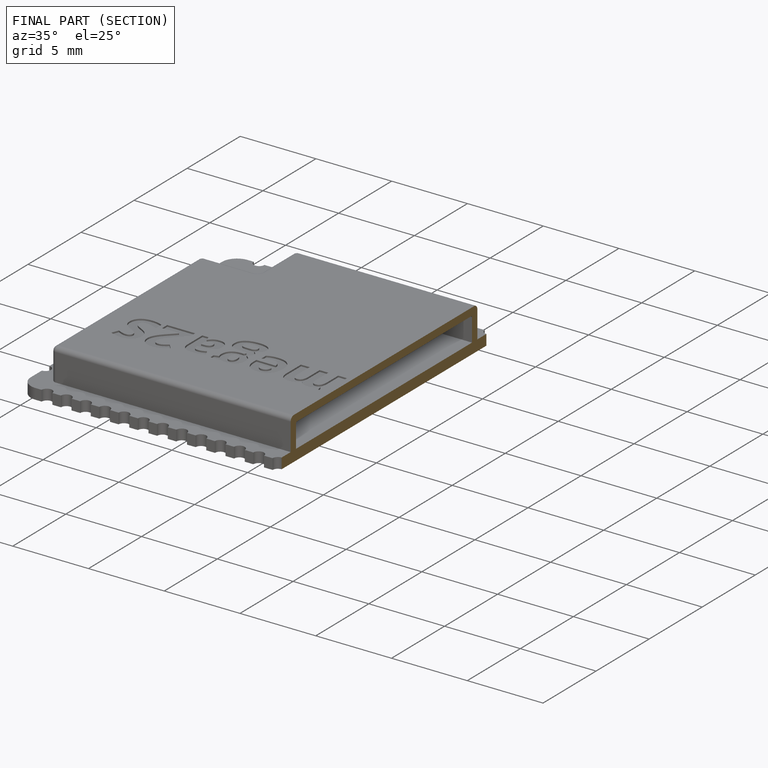
[diagram: finished part — half-section view (interior)]
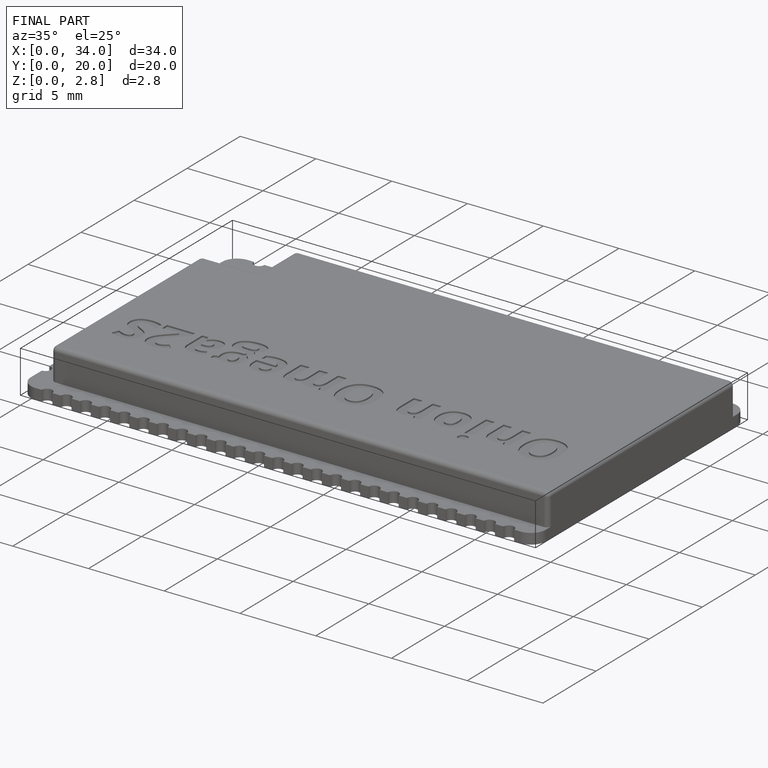
[diagram: finished part — iso view with bounding-box wireframe]
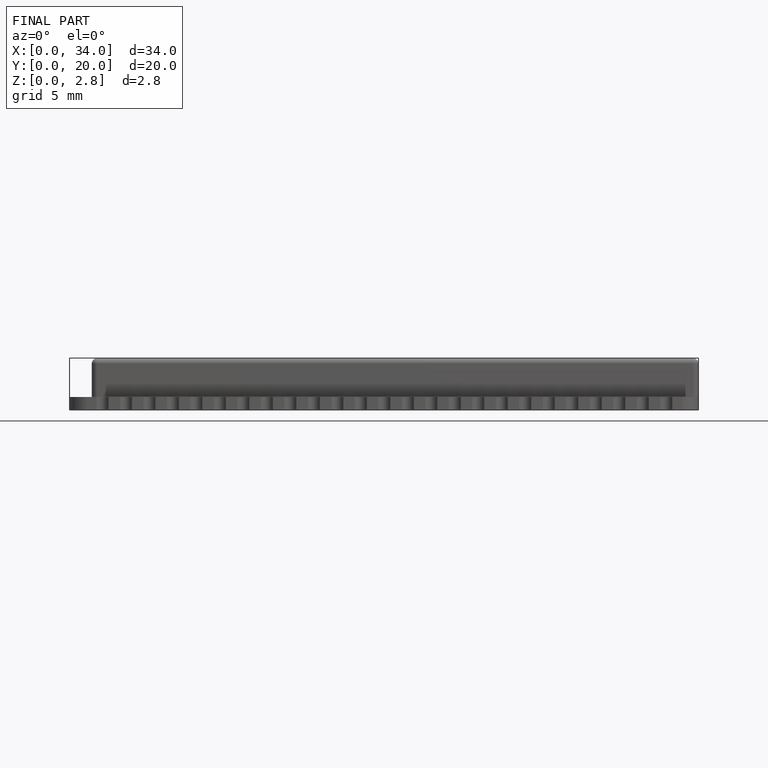
[diagram: finished part — front view with bounding-box wireframe]
